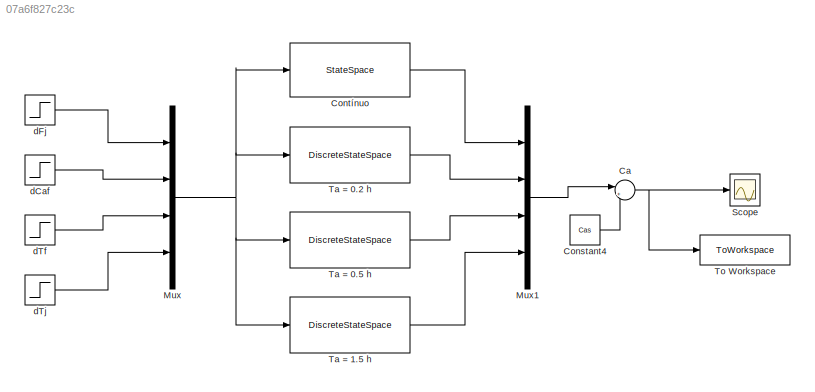
MODEL slx_07a6f827c23c
KIND model
CONFIG AbsTol = auto
CONFIG EnableMultiTasking = off
CONFIG FixedStep = 0.01
CONFIG MaxStep = auto
CONFIG MinStep = auto
CONFIG RelTol = 1e-3
CONFIG SampleTimeConstraint = Unconstrained
CONFIG SolverName = FixedStepAuto
CONFIG StartTime = 0.0
CONFIG StopTime = 15
BLOCK [Sum]             Ca
  Inputs = |++
  NameLocation = top
  Ports = [2, 1]
BLOCK [Constant] Constant4
  Value = Cas
BLOCK [StateSpace] Contínuo
  A = A
  B = B
  C = C
  D = D
  InitialCondition = 0
  Ports = [1, 1]
BLOCK [Mux] Mux
  DisplayOption = bar
  Ports = [4, 1]
BLOCK [Mux] Mux1
  DisplayOption = bar
  Ports = [4, 1]
BLOCK [Scope] Scope
  Floating = off
  NumInputPorts = 1
  Ports = [1]
  ScopeSpecificationString = Simulink.scopes.TimeScopeBlockCfg('CurrentConfiguration', extmgr.ConfigurationSet(extmgr.Configuration('Core','General UI',true),extmgr.Configuration('Core','Source UI',true),extmgr.Configuration('Sources','WiredSimulink',true),extmgr.Configuration('Visuals','Time Domain',true,'SerializedDisplays',{struct('MinYLimReal','8.5599','MaxYLimReal','8.60093','YLabelReal','','MinYLimMag','8.5599','MaxYLim...<+1416ch>
BLOCK [DiscreteStateSpace] Ta = 0.2 h
  A = Gdisc1.A
  B = Gdisc1.B
  C = Gdisc1.C
  D = Gdisc1.D
  SampleTime = 0.2
BLOCK [DiscreteStateSpace] Ta = 0.5 h
  A = Gdisc2.A
  B = Gdisc2.B
  C = Gdisc2.C
  D = Gdisc2.D
  SampleTime = 0.5
BLOCK [DiscreteStateSpace] Ta = 1.5 h
  A = Gdisc3.A
  B = Gdisc3.B
  C = Gdisc3.C
  D = Gdisc3.D
  SampleTime = 1.5
BLOCK [ToWorkspace] To Workspace
  FixptAsFi = on
  MaxDataPoints = inf
  Ports = [1]
  SampleTime = -1
  SaveFormat = Timeseries
  VariableName = Ca_Discreto
BLOCK [Step] dCaf
  After = 0
  SampleTime = 0
  Time = 0
BLOCK [Step] dFj
  After = 0.01
  SampleTime = 0
  Time = 0
BLOCK [Step] dTf
  After = 0
  SampleTime = 0
  Time = 0
BLOCK [Step] dTj
  After = 0
  SampleTime = 0
  Time = 0
NET             Ca:1 -> Scope:1, To Workspace:1
LINE Constant4:1 ->             Ca:2
LINE Contínuo:1 -> Mux1:1
LINE Mux1:1 ->             Ca:1
NET Mux:1 -> Contínuo:1, Ta = 0.2 h:1, Ta = 0.5 h:1, Ta = 1.5 h:1
LINE Ta = 0.2 h:1 -> Mux1:2
LINE Ta = 0.5 h:1 -> Mux1:3
LINE Ta = 1.5 h:1 -> Mux1:4
LINE dCaf:1 -> Mux:2
LINE dFj:1 -> Mux:1
LINE dTf:1 -> Mux:3
LINE dTj:1 -> Mux:4
note: NET lines group one-source signal fan-out (src -> all destinations, sorted); 1:1 wires keep LINE
